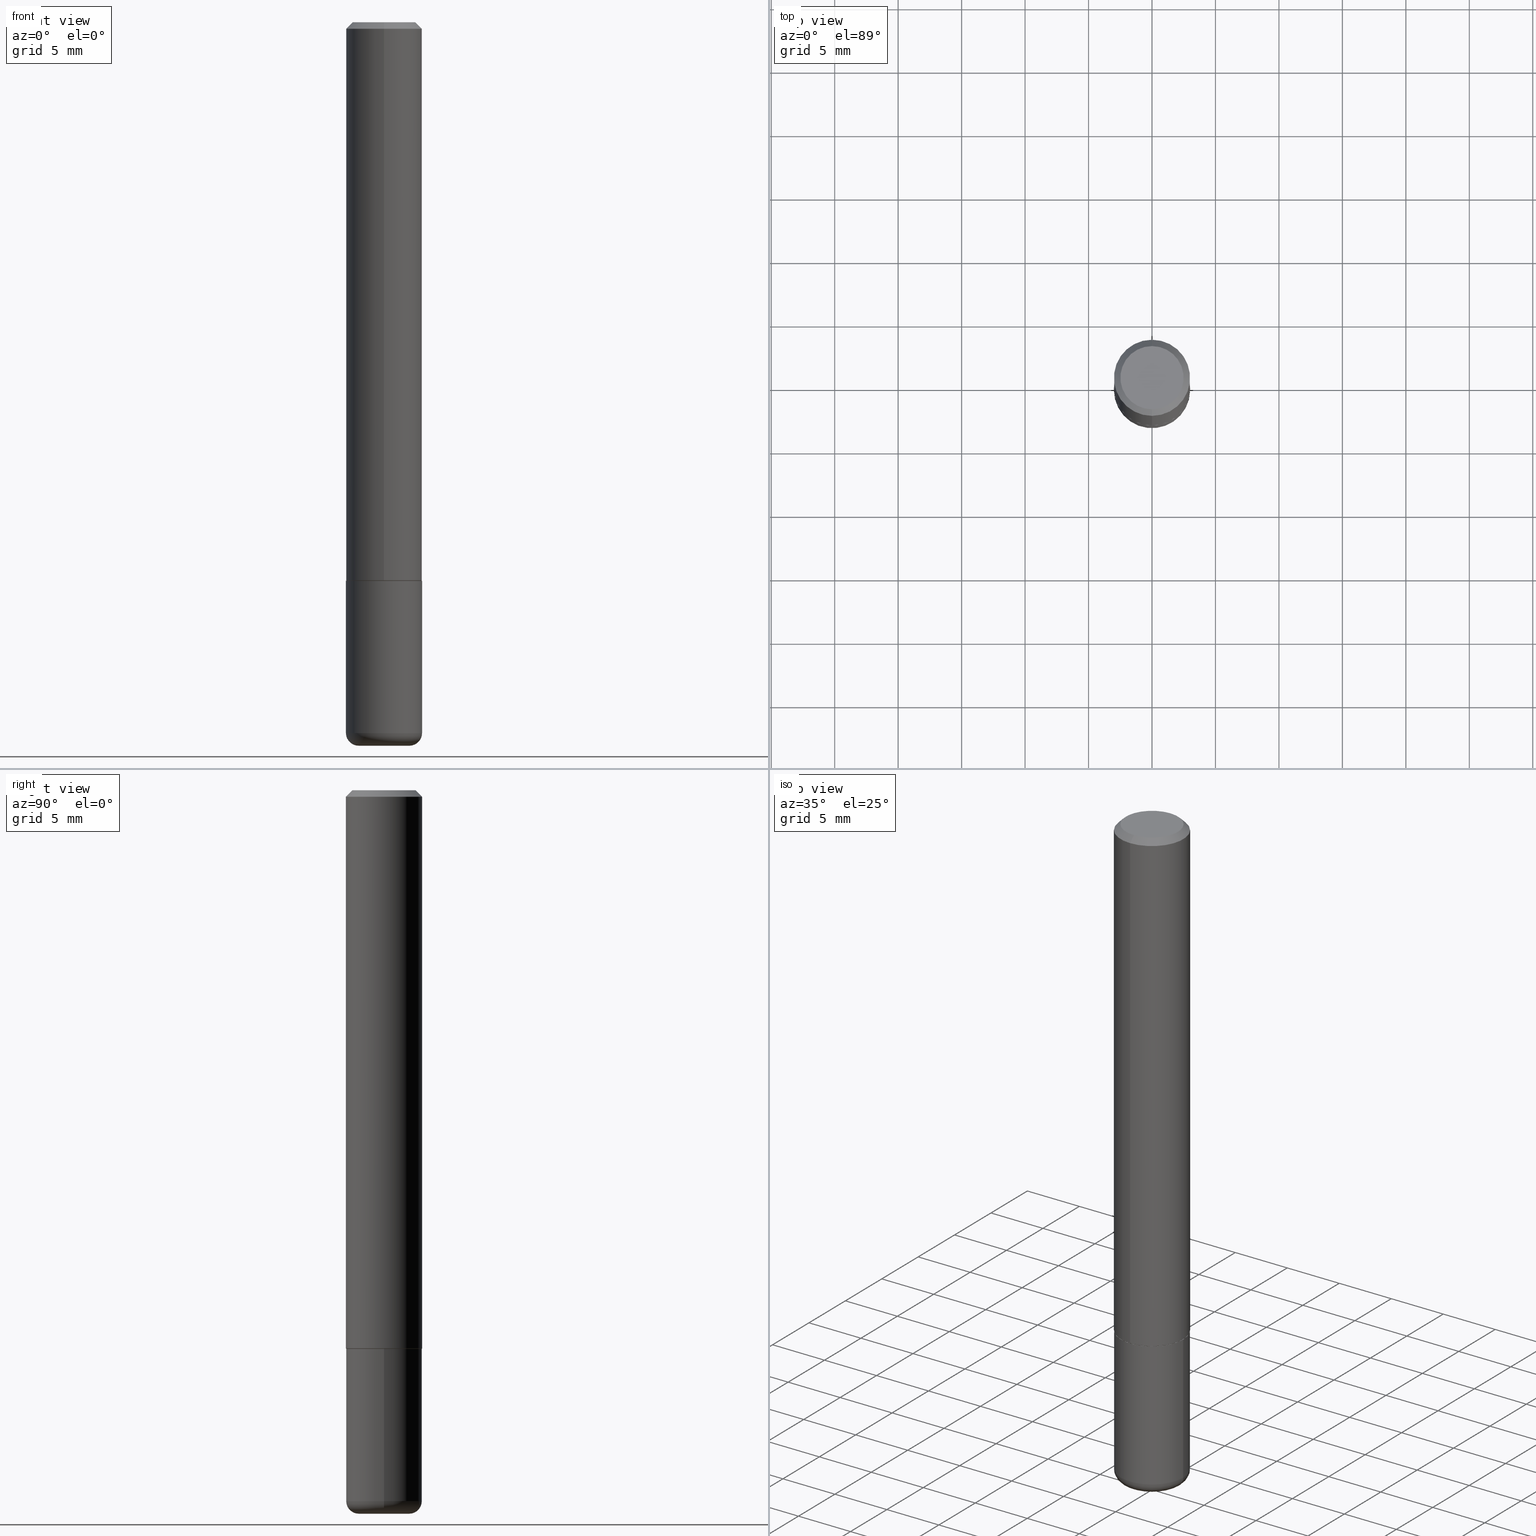
[diagram: canonical four-view strip — front | top / right | iso, engineering-drawing reading convention]
A machine part, canonical four-view strip (front | top / right | iso — engineering-drawing reading convention). The complete STEP part file that produces these views, byte-faithful:
ISO-10303-21;
HEADER;
FILE_DESCRIPTION (( 'STEP AP203' ),
    '1' );
FILE_NAME ('46451.STEP',
    '2024-03-04T20:52:11',
    ( '' ),
    ( '' ),
    'SwSTEP 2.0',
    'SolidWorks 2023',
    '' );
FILE_SCHEMA (( 'CONFIG_CONTROL_DESIGN' ));
ENDSEC;

DATA;
#1 = DESIGN_CONTEXT ( 'detailed design', #191, 'design' ) ;
#2 = CALENDAR_DATE ( 2024, 4, 3 ) ;
#3 = ORIENTED_EDGE ( 'NONE', *, *, #156, .F. ) ;
#4 = APPROVAL_PERSON_ORGANIZATION ( #389, #23, #362 ) ;
#5 = ADVANCED_FACE ( 'NONE', ( #238 ), #244, .F. ) ;
#6 = EDGE_LOOP ( 'NONE', ( #8, #101, #164, #104 ) ) ;
#7 = DIRECTION ( 'NONE',  ( -2.453207642472712595E-29, 3.480398884812129340E-15, 1.000000000000000000 ) ) ;
#8 = ORIENTED_EDGE ( 'NONE', *, *, #94, .F. ) ;
#9 = EDGE_LOOP ( 'NONE', ( #398, #208 ) ) ;
#10 = DIRECTION ( 'NONE',  ( -6.982962677686266711E-15, -1.000000000000000000, 2.332918867347790727E-15 ) ) ;
#11 = CC_DESIGN_PERSON_AND_ORGANIZATION_ASSIGNMENT ( #14, #366, ( #356 ) ) ;
#12 = CARTESIAN_POINT ( 'NONE',  ( 0.07870000000000000606, -8.384792435231810596E-15, -2.244099999999999540 ) ) ;
#13 = CYLINDRICAL_SURFACE ( 'NONE', #171, 0.1181000000000000105 ) ;
#14 = PERSON_AND_ORGANIZATION ( #77, #68 ) ;
#15 = CIRCLE ( 'NONE', #146, 0.03939999999999978936 ) ;
#16 = LINE ( 'NONE', #212, #318 ) ;
#17 = ADVANCED_FACE ( 'NONE', ( #155 ), #46, .T. ) ;
#18 = CARTESIAN_POINT ( 'NONE',  ( 4.906415284945444248E-31, -6.960797769624284960E-17, -0.02000000000000007674 ) ) ;
#19 = DIRECTION ( 'NONE',  ( -2.445468806185136597E-29, 3.491481338843145583E-15, 1.000000000000000000 ) ) ;
#20 = DIRECTION ( 'NONE',  ( 6.982962677686265922E-15, 1.000000000000000000, -3.469747663417776213E-15 ) ) ;
#21 = AXIS2_PLACEMENT_3D ( 'NONE', #227, #91, #125 ) ;
#22 = CARTESIAN_POINT ( 'NONE',  ( 0.1180999999999998995, -8.522356799982231388E-15, -2.204700000000000326 ) ) ;
#23 = APPROVAL ( #263, 'UNSPECIFIED' ) ;
#24 = DIRECTION ( 'NONE',  ( -1.000000000000000000, 6.982962677686265922E-15, -4.876176775795935793E-29 ) ) ;
#25 = EDGE_LOOP ( 'NONE', ( #173, #242 ) ) ;
#26 = ORIENTED_EDGE ( 'NONE', *, *, #378, .F. ) ;
#27 = DIRECTION ( 'NONE',  ( -2.453207642472712595E-29, 3.480398884812129340E-15, 1.000000000000000000 ) ) ;
#28 = DIRECTION ( 'NONE',  ( 2.453207642472712315E-29, -3.480398884812129340E-15, -1.000000000000000000 ) ) ;
#29 = EDGE_CURVE ( 'NONE', #130, #295, #354, .T. ) ;
#30 = DATE_AND_TIME ( #239, #109 ) ;
#31 = DIRECTION ( 'NONE',  ( 6.982962677686265922E-15, 1.000000000000000000, -3.480398884812129340E-15 ) ) ;
#32 = EDGE_LOOP ( 'NONE', ( #396, #298, #223, #357 ) ) ;
#33 = APPROVAL_DATE_TIME ( #103, #23 ) ;
#34 = VERTEX_POINT ( 'NONE', #216 ) ;
#35 = ORIENTED_EDGE ( 'NONE', *, *, #110, .F. ) ;
#36 = PERSON_AND_ORGANIZATION ( #77, #68 ) ;
#37 = APPLICATION_PROTOCOL_DEFINITION ( 'international standard', 'config_control_design', 1994, #243 ) ;
#38 = VERTEX_POINT ( 'NONE', #307 ) ;
#39 = DIRECTION ( 'NONE',  ( -2.453207642472712595E-29, 3.480398884812129340E-15, 1.000000000000000000 ) ) ;
#40 = ORIENTED_EDGE ( 'NONE', *, *, #127, .F. ) ;
#41 = CONICAL_SURFACE ( 'NONE', #264, 0.1181000000000000383, 0.7853981633974479459 ) ;
#42 = AXIS2_PLACEMENT_3D ( 'NONE', #408, #122, #278 ) ;
#43 = CARTESIAN_POINT ( 'NONE',  ( 5.391525076996371277E-29, -7.697668907747483125E-15, -2.204700000000000326 ) ) ;
#44 = DIRECTION ( 'NONE',  ( 1.000000000000000000, -6.982962677686266711E-15, 0.000000000000000000 ) ) ;
#45 = CYLINDRICAL_SURFACE ( 'NONE', #401, 0.1181000000000001354 ) ;
#46 = CYLINDRICAL_SURFACE ( 'NONE', #276, 0.1181000000000001354 ) ;
#47 = EDGE_CURVE ( 'NONE', #130, #106, #75, .T. ) ;
#48 = LINE ( 'NONE', #186, #240 ) ;
#49 = APPROVAL_STATUS ( 'not_yet_approved' ) ;
#50 = AXIS2_PLACEMENT_3D ( 'NONE', #147, #190, #373 ) ;
#51 = AXIS2_PLACEMENT_3D ( 'NONE', #280, #27, #165 ) ;
#52 = CC_DESIGN_APPROVAL ( #90, ( #356 ) ) ;
#53 = DIRECTION ( 'NONE',  ( -2.453207642472712595E-29, 3.480398884812129340E-15, 1.000000000000000000 ) ) ;
#54 = CARTESIAN_POINT ( 'NONE',  ( 0.1181000000000000105, -8.246878922347482626E-16, 5.758764772215001141E-30 ) ) ;
#55 = DIRECTION ( 'NONE',  ( -2.453207642472712315E-29, 3.480398884812129340E-15, 1.000000000000000000 ) ) ;
#56 = DIRECTION ( 'NONE',  ( -2.445468806185136597E-29, 3.491481338843145583E-15, 1.000000000000000000 ) ) ;
#57 = CC_DESIGN_DATE_AND_TIME_ASSIGNMENT ( #30, #332, ( #272 ) ) ;
#58 = VERTEX_POINT ( 'NONE', #273 ) ;
#59 = DIRECTION ( 'NONE',  ( -6.982962677686265133E-15, -1.000000000000000000, 3.480398884812129340E-15 ) ) ;
#60 = DIRECTION ( 'NONE',  ( 2.453207642472712595E-29, -3.480398884812129340E-15, -1.000000000000000000 ) ) ;
#61 = ADVANCED_FACE ( 'NONE', ( #399 ), #41, .T. ) ;
#62 = FACE_OUTER_BOUND ( 'NONE', #9, .T. ) ;
#63 = VERTEX_POINT ( 'NONE', #111 ) ;
#64 =( LENGTH_UNIT ( ) NAMED_UNIT ( * ) SI_UNIT ( $, .METRE. ) );
#65 = AXIS2_PLACEMENT_3D ( 'NONE', #346, #55, #217 ) ;
#66 = CIRCLE ( 'NONE', #87, 0.09810000000000024256 ) ;
#67 = EDGE_LOOP ( 'NONE', ( #301, #204, #202, #235 ) ) ;
#68 = ORGANIZATION ( 'UNSPECIFIED', 'UNSPECIFIED', '' ) ;
#69 = UNCERTAINTY_MEASURE_WITH_UNIT (LENGTH_MEASURE( 1.000000000000000082E-05 ), #234, 'distance_accuracy_value', 'NONE');
#70 = EDGE_LOOP ( 'NONE', ( #327, #195, #180, #392 ) ) ;
#71 = PERSON_AND_ORGANIZATION_ROLE ( 'design_owner' ) ;
#72 = EDGE_LOOP ( 'NONE', ( #291, #304, #266, #365 ) ) ;
#73 = EDGE_CURVE ( 'NONE', #169, #63, #89, .T. ) ;
#74 = ORIENTED_EDGE ( 'NONE', *, *, #302, .T. ) ;
#75 = CIRCLE ( 'NONE', #50, 0.07870000000000000606 ) ;
#76 = ORIENTED_EDGE ( 'NONE', *, *, #175, .F. ) ;
#77 = PERSON ( 'UNSPECIFIED', 'UNSPECIFIED', 'UNSPECIFIED', ('UNSPECIFIED'), ('UNSPECIFIED'), ('UNSPECIFIED') ) ;
#78 = EDGE_CURVE ( 'NONE', #79, #38, #246, .T. ) ;
#79 = VERTEX_POINT ( 'NONE', #118 ) ;
#80 = DIRECTION ( 'NONE',  ( -2.453207642472712595E-29, 3.480398884812129340E-15, 1.000000000000000000 ) ) ;
#81 = DIMENSIONAL_EXPONENTS ( 1.000000000000000000, 0.000000000000000000, 0.000000000000000000, 0.000000000000000000, 0.000000000000000000, 0.000000000000000000, 0.000000000000000000 ) ;
#82 = DIRECTION ( 'NONE',  ( -2.445468806185136877E-29, 3.491481338843145188E-15, 1.000000000000000000 ) ) ;
#83 = VECTOR ( 'NONE', #344, 39.37007874015748143 ) ;
#84 = CARTESIAN_POINT ( 'NONE',  ( -8.177049295570194526E-16, -0.1171000000000060326, -1.732299999999999729 ) ) ;
#85 = CARTESIAN_POINT ( 'NONE',  ( -8.246878922347070446E-16, -0.1181000000000062417, -1.731299999999999395 ) ) ;
#86 = CARTESIAN_POINT ( 'NONE',  ( 0.000000000000000000, 0.000000000000000000, 0.000000000000000000 ) ) ;
#87 = AXIS2_PLACEMENT_3D ( 'NONE', #383, #163, #59 ) ;
#88 = CYLINDRICAL_SURFACE ( 'NONE', #194, 0.1181000000000000105 ) ;
#89 = LINE ( 'NONE', #220, #231 ) ;
#90 = APPROVAL ( #132, 'UNSPECIFIED' ) ;
#91 = DIRECTION ( 'NONE',  ( -2.453207642472712595E-29, 3.480398884812129340E-15, 1.000000000000000000 ) ) ;
#92 = ORIENTED_EDGE ( 'NONE', *, *, #47, .T. ) ;
#93 = VECTOR ( 'NONE', #153, 39.37007874015748143 ) ;
#94 = EDGE_CURVE ( 'NONE', #367, #288, #16, .T. ) ;
#95 = CARTESIAN_POINT ( 'NONE',  ( -0.07870000000000000606, -7.138471774704284335E-15, -2.204700000000000326 ) ) ;
#96 =( NAMED_UNIT ( * ) SI_UNIT ( $, .STERADIAN. ) SOLID_ANGLE_UNIT ( ) );
#97 = CIRCLE ( 'NONE', #309, 0.1181000000000000383 ) ;
#98 = ORIENTED_EDGE ( 'NONE', *, *, #94, .T. ) ;
#99 = CC_DESIGN_APPROVAL ( #23, ( #272 ) ) ;
#100 = MECHANICAL_CONTEXT ( 'NONE', #243, 'mechanical' ) ;
#101 = ORIENTED_EDGE ( 'NONE', *, *, #258, .T. ) ;
#102 = EDGE_CURVE ( 'NONE', #138, #58, #136, .T. ) ;
#103 = DATE_AND_TIME ( #105, #414 ) ;
#104 = ORIENTED_EDGE ( 'NONE', *, *, #333, .F. ) ;
#105 = CALENDAR_DATE ( 2024, 4, 3 ) ;
#106 = VERTEX_POINT ( 'NONE', #376 ) ;
#107 = CLOSED_SHELL ( 'NONE', ( #260, #17, #61, #395, #245, #253, #5, #214 ) ) ;
#108 = CIRCLE ( 'NONE', #297, 0.1171000000000000096 ) ;
#109 = LOCAL_TIME ( 15, 52, 11.00000000000000000, #207 ) ;
#110 = EDGE_CURVE ( 'NONE', #63, #38, #249, .T. ) ;
#111 = CARTESIAN_POINT ( 'NONE',  ( -8.102248135368175393E-16, -0.1181000000000001077, -0.01999999999999966735 ) ) ;
#112 = CALENDAR_DATE ( 2024, 4, 3 ) ;
#113 = DIRECTION ( 'NONE',  ( 2.453207642472712595E-29, -3.480398884812129340E-15, -1.000000000000000000 ) ) ;
#114 = AXIS2_PLACEMENT_3D ( 'NONE', #285, #56, #348 ) ;
#115 = APPROVAL_PERSON_ORGANIZATION ( #117, #292, #247 ) ;
#116 = LINE ( 'NONE', #345, #250 ) ;
#117 = PERSON_AND_ORGANIZATION ( #77, #68 ) ;
#118 = CARTESIAN_POINT ( 'NONE',  ( 8.391509709327008768E-16, 0.1180999999999941957, -1.731300000000000505 ) ) ;
#119 = PRODUCT_RELATED_PRODUCT_CATEGORY ( 'detail', '', ( #294 ) ) ;
#120 = DIRECTION ( 'NONE',  ( 1.000000000000000000, -6.982962677686265133E-15, 0.000000000000000000 ) ) ;
#121 = PRODUCT_DEFINITION_SHAPE ( 'NONE', 'NONE',  #272 ) ;
#122 = DIRECTION ( 'NONE',  ( -2.445468806185136597E-29, 3.491481338843145583E-15, 1.000000000000000000 ) ) ;
#123 = AXIS2_PLACEMENT_3D ( 'NONE', #43, #148, #120 ) ;
#124 = FACE_OUTER_BOUND ( 'NONE', #70, .T. ) ;
#125 = DIRECTION ( 'NONE',  ( -6.982962677686265922E-15, -1.000000000000000000, 4.626330217890360659E-15 ) ) ;
#126 = VERTEX_POINT ( 'NONE', #305 ) ;
#127 = EDGE_CURVE ( 'NONE', #106, #130, #137, .T. ) ;
#128 = CARTESIAN_POINT ( 'NONE',  ( -0.1180999999999998995, -6.858517936814806506E-15, -2.204700000000000326 ) ) ;
#129 = TOROIDAL_SURFACE ( 'NONE', #355, 0.07870000000000000606, 0.03939999999999978936 ) ;
#130 = VERTEX_POINT ( 'NONE', #12 ) ;
#131 = FACE_OUTER_BOUND ( 'NONE', #320, .T. ) ;
#132 = APPROVAL_STATUS ( 'not_yet_approved' ) ;
#133 = ADVANCED_BREP_SHAPE_REPRESENTATION ( '46451', ( #237, #369, #270 ), #397 ) ;
#134 = DATE_AND_TIME ( #2, #310 ) ;
#135 = CC_DESIGN_DATE_AND_TIME_ASSIGNMENT ( #342, #274, ( #182 ) ) ;
#136 = CIRCLE ( 'NONE', #370, 0.09810000000000024256 ) ;
#137 = CIRCLE ( 'NONE', #42, 0.07870000000000000606 ) ;
#138 = VERTEX_POINT ( 'NONE', #275 ) ;
#139 = APPROVAL_DATE_TIME ( #134, #90 ) ;
#140 = ORIENTED_EDGE ( 'NONE', *, *, #102, .F. ) ;
#141 = COORDINATED_UNIVERSAL_TIME_OFFSET ( 5, 0, .BEHIND. ) ;
#142 = EDGE_LOOP ( 'NONE', ( #74, #162 ) ) ;
#143 = EDGE_CURVE ( 'NONE', #299, #169, #400, .T. ) ;
#144 = CARTESIAN_POINT ( 'NONE',  ( 0.000000000000000000, 0.000000000000000000, 0.000000000000000000 ) ) ;
#145 = EDGE_LOOP ( 'NONE', ( #140, #176, #271, #76 ) ) ;
#146 = AXIS2_PLACEMENT_3D ( 'NONE', #95, #160, #388 ) ;
#147 = CARTESIAN_POINT ( 'NONE',  ( 5.487876547960064752E-29, -7.835233272497900762E-15, -2.244099999999999540 ) ) ;
#148 = DIRECTION ( 'NONE',  ( -2.445468806185136597E-29, 3.491481338843145583E-15, 1.000000000000000000 ) ) ;
#149 = ADVANCED_FACE ( 'NONE', ( #343 ), #13, .T. ) ;
#150 = DIRECTION ( 'NONE',  ( -2.445468806185136597E-29, 3.491481338843145583E-15, 1.000000000000000000 ) ) ;
#151 = DATE_AND_TIME ( #229, #340 ) ;
#152 = AXIS2_PLACEMENT_3D ( 'NONE', #211, #338, #371 ) ;
#153 = DIRECTION ( 'NONE',  ( -4.937700262164884886E-15, -0.7071067811865933139, 0.7071067811865017205 ) ) ;
#154 = DIRECTION ( 'NONE',  ( -6.982962677686265922E-15, -1.000000000000000000, 3.480398884812129340E-15 ) ) ;
#155 = FACE_OUTER_BOUND ( 'NONE', #391, .T. ) ;
#156 = EDGE_CURVE ( 'NONE', #34, #79, #116, .T. ) ;
#157 = CARTESIAN_POINT ( 'NONE',  ( 0.000000000000000000, 0.000000000000000000, 0.000000000000000000 ) ) ;
#158 = PLANE ( 'NONE',  #330 ) ;
#159 = AXIS2_PLACEMENT_3D ( 'NONE', #192, #286, #226 ) ;
#160 = DIRECTION ( 'NONE',  ( 7.105427357601001859E-15, 1.000000000000000000, -3.491481338843145583E-15 ) ) ;
#161 = DIRECTION ( 'NONE',  ( -2.445468806185136597E-29, 3.491481338843145583E-15, 1.000000000000000000 ) ) ;
#162 = ORIENTED_EDGE ( 'NONE', *, *, #333, .T. ) ;
#163 = DIRECTION ( 'NONE',  ( -2.453207642472712595E-29, 3.480398884812129340E-15, 1.000000000000000000 ) ) ;
#164 = ORIENTED_EDGE ( 'NONE', *, *, #406, .T. ) ;
#165 = DIRECTION ( 'NONE',  ( -6.982962677686265922E-15, -1.000000000000000000, 3.469747663417776213E-15 ) ) ;
#166 = DIRECTION ( 'NONE',  ( 0.000000000000000000, 0.000000000000000000, 1.000000000000000000 ) ) ;
#167 = CC_DESIGN_PERSON_AND_ORGANIZATION_ASSIGNMENT ( #36, #360, ( #272 ) ) ;
#168 = DIRECTION ( 'NONE',  ( 1.000000000000000000, -6.982962677686268288E-15, 4.883557194083112901E-29 ) ) ;
#169 = VERTEX_POINT ( 'NONE', #85 ) ;
#170 =( NAMED_UNIT ( * ) PLANE_ANGLE_UNIT ( ) SI_UNIT ( $, .RADIAN. ) );
#171 = AXIS2_PLACEMENT_3D ( 'NONE', #86, #150, #405 ) ;
#172 = AXIS2_PLACEMENT_3D ( 'NONE', #415, #413, #411 ) ;
#173 = ORIENTED_EDGE ( 'NONE', *, *, #416, .F. ) ;
#174 = LENGTH_MEASURE_WITH_UNIT ( LENGTH_MEASURE( 0.02539999999999999897 ), #64 );
#175 = EDGE_CURVE ( 'NONE', #58, #38, #48, .T. ) ;
#176 = ORIENTED_EDGE ( 'NONE', *, *, #224, .T. ) ;
#177 = CARTESIAN_POINT ( 'NONE',  ( 4.249691599055480150E-29, -6.029094988160052351E-15, -1.732299999999999951 ) ) ;
#178 = ORIENTED_EDGE ( 'NONE', *, *, #358, .T. ) ;
#179 = PERSON_AND_ORGANIZATION ( #77, #68 ) ;
#180 = ORIENTED_EDGE ( 'NONE', *, *, #29, .T. ) ;
#181 = VECTOR ( 'NONE', #313, 39.37007874015748143 ) ;
#182 = SECURITY_CLASSIFICATION ( '', '', #335 ) ;
#183 = FACE_OUTER_BOUND ( 'NONE', #67, .T. ) ;
#184 = CARTESIAN_POINT ( 'NONE',  ( 4.906415284945444248E-31, -6.960797769624284960E-17, -0.02000000000000007674 ) ) ;
#185 = CARTESIAN_POINT ( 'NONE',  ( 0.000000000000000000, 0.000000000000000000, 0.000000000000000000 ) ) ;
#186 = CARTESIAN_POINT ( 'NONE',  ( 8.246878922347486570E-16, 0.1180999999999999689, -0.02000000000000048614 ) ) ;
#187 = DIRECTION ( 'NONE',  ( -2.453207642472712595E-29, 3.480398884812129340E-15, 1.000000000000000000 ) ) ;
#188 = EDGE_CURVE ( 'NONE', #169, #79, #339, .T. ) ;
#189 = CARTESIAN_POINT ( 'NONE',  ( 4.236285612954512392E-29, -6.048293123277981078E-15, -1.732299999999999951 ) ) ;
#190 = DIRECTION ( 'NONE',  ( -2.445468806185136597E-29, 3.491481338843145583E-15, 1.000000000000000000 ) ) ;
#191 = APPLICATION_CONTEXT ( 'configuration controlled 3d designs of mechanical parts and assemblies' ) ;
#192 = CARTESIAN_POINT ( 'NONE',  ( 4.249691599055480150E-29, -6.029094988160052351E-15, -1.732299999999999951 ) ) ;
#193 = SHAPE_DEFINITION_REPRESENTATION ( #121, #133 ) ;
#194 = AXIS2_PLACEMENT_3D ( 'NONE', #157, #161, #222 ) ;
#195 = ORIENTED_EDGE ( 'NONE', *, *, #127, .T. ) ;
#196 = ADVANCED_FACE ( 'NONE', ( #384 ), #158, .T. ) ;
#197 = DIRECTION ( 'NONE',  ( -2.445468806185136597E-29, 3.491481338843145583E-15, 1.000000000000000000 ) ) ;
#198 = CIRCLE ( 'NONE', #289, 0.1180999999999999966 ) ;
#199 = LOCAL_TIME ( 15, 52, 11.00000000000000000, #215 ) ;
#200 = EDGE_CURVE ( 'NONE', #295, #367, #198, .T. ) ;
#201 = DIRECTION ( 'NONE',  ( -2.445468806185136597E-29, 3.491481338843145583E-15, 1.000000000000000000 ) ) ;
#202 = ORIENTED_EDGE ( 'NONE', *, *, #73, .T. ) ;
#203 = APPROVAL_ROLE ( '' ) ;
#204 = ORIENTED_EDGE ( 'NONE', *, *, #378, .T. ) ;
#205 = CONICAL_SURFACE ( 'NONE', #325, 0.1171000000000000096, 0.7853981633975165577 ) ;
#206 = ORIENTED_EDGE ( 'NONE', *, *, #47, .F. ) ;
#207 = COORDINATED_UNIVERSAL_TIME_OFFSET ( 5, 0, .BEHIND. ) ;
#208 = ORIENTED_EDGE ( 'NONE', *, *, #102, .T. ) ;
#209 = CARTESIAN_POINT ( 'NONE',  ( 4.249691599055480150E-29, -6.029094988160052351E-15, -1.732299999999999951 ) ) ;
#210 = EDGE_LOOP ( 'NONE', ( #206, #40 ) ) ;
#211 = CARTESIAN_POINT ( 'NONE',  ( 4.249691599055480150E-29, -6.029094988160052351E-15, -1.732299999999999951 ) ) ;
#212 = CARTESIAN_POINT ( 'NONE',  ( -0.1181000000000000105, 8.391509709326783943E-16, -5.809262341591044484E-30 ) ) ;
#213 = CIRCLE ( 'NONE', #51, 0.1181000000000000383 ) ;
#214 = ADVANCED_FACE ( 'NONE', ( #62 ), #324, .F. ) ;
#215 = COORDINATED_UNIVERSAL_TIME_OFFSET ( 5, 0, .BEHIND. ) ;
#216 = CARTESIAN_POINT ( 'NONE',  ( 8.355982572539209817E-16, 0.1170999999999939867, -1.732300000000000173 ) ) ;
#217 = DIRECTION ( 'NONE',  ( -6.982962677686265922E-15, -1.000000000000000000, 3.480398884812129340E-15 ) ) ;
#218 = CARTESIAN_POINT ( 'NONE',  ( 4.247238391413007302E-29, -6.025614589275239241E-15, -1.731299999999999839 ) ) ;
#219 = LINE ( 'NONE', #54, #181 ) ;
#220 = CARTESIAN_POINT ( 'NONE',  ( -8.246878922347489529E-16, -0.1181000000000001354, 4.110351082963129416E-16 ) ) ;
#221 = CARTESIAN_POINT ( 'NONE',  ( -8.177049295570194526E-16, -0.1171000000000060326, -1.732299999999999729 ) ) ;
#222 = DIRECTION ( 'NONE',  ( 1.000000000000000000, -6.982962677686267499E-15, 4.876176775795936353E-29 ) ) ;
#223 = ORIENTED_EDGE ( 'NONE', *, *, #175, .T. ) ;
#224 = EDGE_CURVE ( 'NONE', #138, #63, #418, .T. ) ;
#225 = CIRCLE ( 'NONE', #21, 0.1181000000000002187 ) ;
#226 = DIRECTION ( 'NONE',  ( -6.982962677686266711E-15, -1.000000000000000000, 2.332918867347790727E-15 ) ) ;
#227 = CARTESIAN_POINT ( 'NONE',  ( 4.247238391413007302E-29, -6.025614589275239241E-15, -1.731299999999999839 ) ) ;
#228 = COORDINATED_UNIVERSAL_TIME_OFFSET ( 5, 0, .BEHIND. ) ;
#229 = CALENDAR_DATE ( 2024, 4, 3 ) ;
#231 = VECTOR ( 'NONE', #255, 39.37007874015748143 ) ;
#230 = COORDINATED_UNIVERSAL_TIME_OFFSET ( 5, 0, .BEHIND. ) ;
#232 = AXIS2_PLACEMENT_3D ( 'NONE', #218, #187, #312 ) ;
#233 = ORIENTED_EDGE ( 'NONE', *, *, #200, .T. ) ;
#234 =( CONVERSION_BASED_UNIT ( 'INCH', #174 ) LENGTH_UNIT ( ) NAMED_UNIT ( #81 ) );
#235 = ORIENTED_EDGE ( 'NONE', *, *, #390, .F. ) ;
#236 = DIRECTION ( 'NONE',  ( -6.982962677686266711E-15, -1.000000000000000000, 2.332918867347790727E-15 ) ) ;
#237 = MANIFOLD_SOLID_BREP ( 'Body-Move/Copy2[1]', #256 ) ;
#238 = FACE_OUTER_BOUND ( 'NONE', #25, .T. ) ;
#239 = CALENDAR_DATE ( 2024, 4, 3 ) ;
#240 = VECTOR ( 'NONE', #308, 39.37007874015748143 ) ;
#241 = APPROVAL_PERSON_ORGANIZATION ( #417, #90, #203 ) ;
#242 = ORIENTED_EDGE ( 'NONE', *, *, #358, .F. ) ;
#243 = APPLICATION_CONTEXT ( 'configuration controlled 3d designs of mechanical parts and assemblies' ) ;
#244 = PLANE ( 'NONE',  #65 ) ;
#245 = ADVANCED_FACE ( 'NONE', ( #183 ), #45, .T. ) ;
#246 = LINE ( 'NONE', #368, #83 ) ;
#247 = APPROVAL_ROLE ( '' ) ;
#248 = CARTESIAN_POINT ( 'NONE',  ( 6.728461373399560845E-45, -9.545759215423528574E-31, -2.742719881068690721E-16 ) ) ;
#249 = CIRCLE ( 'NONE', #380, 0.1181000000000000383 ) ;
#250 = VECTOR ( 'NONE', #252, 39.37007874015748143 ) ;
#251 = CC_DESIGN_SECURITY_CLASSIFICATION ( #182, ( #356 ) ) ;
#252 = DIRECTION ( 'NONE',  ( 5.024295867788404755E-15, 0.7071067811865981989, 0.7071067811864968355 ) ) ;
#253 = ADVANCED_FACE ( 'NONE', ( #306 ), #282, .T. ) ;
#254 = DIRECTION ( 'NONE',  ( -2.453207642472712595E-29, 3.480398884812129340E-15, 1.000000000000000000 ) ) ;
#255 = DIRECTION ( 'NONE',  ( -2.453207642472712315E-29, 3.480398884812129340E-15, 1.000000000000000000 ) ) ;
#256 = CLOSED_SHELL ( 'NONE', ( #322, #387, #364, #149, #412, #196 ) ) ;
#257 = VECTOR ( 'NONE', #407, 39.37007874015748143 ) ;
#258 = EDGE_CURVE ( 'NONE', #367, #295, #385, .T. ) ;
#259 = DIRECTION ( 'NONE',  ( -2.445468806185136597E-29, 3.491481338843145583E-15, 1.000000000000000000 ) ) ;
#260 = ADVANCED_FACE ( 'NONE', ( #377 ), #205, .T. ) ;
#261 = FACE_OUTER_BOUND ( 'NONE', #32, .T. ) ;
#262 = ORIENTED_EDGE ( 'NONE', *, *, #143, .T. ) ;
#264 = AXIS2_PLACEMENT_3D ( 'NONE', #18, #113, #379 ) ;
#263 = APPROVAL_STATUS ( 'not_yet_approved' ) ;
#265 = CONICAL_SURFACE ( 'NONE', #372, 0.1181000000000000383, 0.7853981633974479459 ) ;
#266 = ORIENTED_EDGE ( 'NONE', *, *, #188, .F. ) ;
#267 = PERSON_AND_ORGANIZATION ( #77, #68 ) ;
#268 = ORIENTED_EDGE ( 'NONE', *, *, #406, .F. ) ;
#269 = ORIENTED_EDGE ( 'NONE', *, *, #302, .F. ) ;
#270 = AXIS2_PLACEMENT_3D ( 'NONE', #144, #166, #300 ) ;
#271 = ORIENTED_EDGE ( 'NONE', *, *, #110, .T. ) ;
#272 = PRODUCT_DEFINITION ( 'UNKNOWN', '', #356, #1 ) ;
#273 = CARTESIAN_POINT ( 'NONE',  ( 7.548582654578864435E-16, 0.09810000000000024256, -6.156991187069398174E-16 ) ) ;
#274 = DATE_TIME_ROLE ( 'classification_date' ) ;
#275 = CARTESIAN_POINT ( 'NONE',  ( -7.416198335591031939E-16, -0.09810000000000024256, 6.715514249320171023E-17 ) ) ;
#276 = AXIS2_PLACEMENT_3D ( 'NONE', #185, #375, #403 ) ;
#277 = DIRECTION ( 'NONE',  ( -6.982962677686265133E-15, -1.000000000000000000, 3.480398884812129340E-15 ) ) ;
#278 = DIRECTION ( 'NONE',  ( 1.000000000000000000, -6.982962677686269077E-15, 0.000000000000000000 ) ) ;
#279 = DIRECTION ( 'NONE',  ( -6.982962677686265922E-15, -1.000000000000000000, 3.469747663417776213E-15 ) ) ;
#280 = CARTESIAN_POINT ( 'NONE',  ( 4.906415284945444248E-31, -6.960797769624284960E-17, -0.02000000000000007674 ) ) ;
#281 = DIRECTION ( 'NONE',  ( 2.438088387897960049E-29, -3.491481338843145188E-15, -1.000000000000000000 ) ) ;
#282 = CONICAL_SURFACE ( 'NONE', #152, 0.1171000000000000096, 0.7853981633975165577 ) ;
#283 = CC_DESIGN_PERSON_AND_ORGANIZATION_ASSIGNMENT ( #179, #303, ( #182 ) ) ;
#284 = CARTESIAN_POINT ( 'NONE',  ( 6.850286386810243286E-16, 0.09810000000000024256, -4.785631246535053306E-16 ) ) ;
#285 = CARTESIAN_POINT ( 'NONE',  ( 4.236285612954512392E-29, -6.048293123277981078E-15, -1.732299999999999951 ) ) ;
#286 = DIRECTION ( 'NONE',  ( -2.453207642472712595E-29, 3.480398884812129340E-15, 1.000000000000000000 ) ) ;
#287 = CARTESIAN_POINT ( 'NONE',  ( 1.092743596228401244E-28, -4.547459069109707912E-17, -2.244099999999999540 ) ) ;
#288 = VERTEX_POINT ( 'NONE', #381 ) ;
#289 = AXIS2_PLACEMENT_3D ( 'NONE', #317, #259, #353 ) ;
#290 = FACE_OUTER_BOUND ( 'NONE', #142, .T. ) ;
#291 = ORIENTED_EDGE ( 'NONE', *, *, #416, .T. ) ;
#292 = APPROVAL ( #49, 'UNSPECIFIED' ) ;
#293 = PERSON_AND_ORGANIZATION ( #77, #68 ) ;
#294 = PRODUCT ( '46451', '46451', '', ( #100 ) ) ;
#295 = VERTEX_POINT ( 'NONE', #22 ) ;
#296 = CARTESIAN_POINT ( 'NONE',  ( 5.391525076996371277E-29, -7.697668907747483125E-15, -2.204700000000000326 ) ) ;
#297 = AXIS2_PLACEMENT_3D ( 'NONE', #177, #7, #236 ) ;
#298 = ORIENTED_EDGE ( 'NONE', *, *, #347, .F. ) ;
#299 = VERTEX_POINT ( 'NONE', #221 ) ;
#300 = DIRECTION ( 'NONE',  ( 1.000000000000000000, 0.000000000000000000, 0.000000000000000000 ) ) ;
#301 = ORIENTED_EDGE ( 'NONE', *, *, #78, .F. ) ;
#302 = EDGE_CURVE ( 'NONE', #126, #288, #97, .T. ) ;
#303 = PERSON_AND_ORGANIZATION_ROLE ( 'classification_officer' ) ;
#304 = ORIENTED_EDGE ( 'NONE', *, *, #156, .T. ) ;
#305 = CARTESIAN_POINT ( 'NONE',  ( 0.1181000000000000383, -6.872981015512729341E-15, -1.732299999999999951 ) ) ;
#306 = FACE_OUTER_BOUND ( 'NONE', #334, .T. ) ;
#307 = CARTESIAN_POINT ( 'NONE',  ( 8.246878922347486570E-16, 0.1180999999999999689, -0.02000000000000048614 ) ) ;
#308 = DIRECTION ( 'NONE',  ( 4.937700262164545676E-15, 0.7071067811865447972, -0.7071067811865502373 ) ) ;
#309 = AXIS2_PLACEMENT_3D ( 'NONE', #189, #19, #382 ) ;
#310 = LOCAL_TIME ( 15, 52, 11.00000000000000000, #230 ) ;
#311 = CARTESIAN_POINT ( 'NONE',  ( 0.000000000000000000, 0.000000000000000000, 0.000000000000000000 ) ) ;
#312 = DIRECTION ( 'NONE',  ( -6.982962677686265922E-15, -1.000000000000000000, 4.626330217890360659E-15 ) ) ;
#313 = DIRECTION ( 'NONE',  ( -2.445468806185136877E-29, 3.491481338843145188E-15, 1.000000000000000000 ) ) ;
#314 = DIRECTION ( 'NONE',  ( -6.982962677686266711E-15, -1.000000000000000000, 3.491481338843145583E-15 ) ) ;
#315 = CC_DESIGN_PERSON_AND_ORGANIZATION_ASSIGNMENT ( #293, #71, ( #294 ) ) ;
#316 = DIRECTION ( 'NONE',  ( 1.000000000000000000, -6.982962677686268288E-15, 4.883557194083112901E-29 ) ) ;
#317 = CARTESIAN_POINT ( 'NONE',  ( 5.391525076996371277E-29, -7.697668907747483125E-15, -2.204700000000000326 ) ) ;
#318 = VECTOR ( 'NONE', #82, 39.37007874015748143 ) ;
#319 = TOROIDAL_SURFACE ( 'NONE', #363, 0.07870000000000000606, 0.03939999999999978936 ) ;
#320 = EDGE_LOOP ( 'NONE', ( #92, #359, #331, #329 ) ) ;
#321 = FACE_OUTER_BOUND ( 'NONE', #350, .T. ) ;
#322 = ADVANCED_FACE ( 'NONE', ( #321 ), #88, .T. ) ;
#323 = PLANE ( 'NONE',  #172 ) ;
#324 = PLANE ( 'NONE',  #410 ) ;
#325 = AXIS2_PLACEMENT_3D ( 'NONE', #209, #39, #10 ) ;
#326 = APPLICATION_PROTOCOL_DEFINITION ( 'international standard', 'config_control_design', 1994, #191 ) ;
#327 = ORIENTED_EDGE ( 'NONE', *, *, #328, .F. ) ;
#328 = EDGE_CURVE ( 'NONE', #106, #367, #15, .T. ) ;
#329 = ORIENTED_EDGE ( 'NONE', *, *, #29, .F. ) ;
#330 = AXIS2_PLACEMENT_3D ( 'NONE', #287, #281, #24 ) ;
#331 = ORIENTED_EDGE ( 'NONE', *, *, #200, .F. ) ;
#332 = DATE_TIME_ROLE ( 'creation_date' ) ;
#333 = EDGE_CURVE ( 'NONE', #288, #126, #351, .T. ) ;
#334 = EDGE_LOOP ( 'NONE', ( #3, #178, #262, #26 ) ) ;
#335 = SECURITY_CLASSIFICATION_LEVEL ( 'unclassified' ) ;
#336 = CARTESIAN_POINT ( 'NONE',  ( -8.102248135368175393E-16, -0.1181000000000001077, -0.01999999999999966735 ) ) ;
#337 = ORIENTED_EDGE ( 'NONE', *, *, #78, .T. ) ;
#338 = DIRECTION ( 'NONE',  ( -2.453207642472712595E-29, 3.480398884812129340E-15, 1.000000000000000000 ) ) ;
#339 = CIRCLE ( 'NONE', #232, 0.1181000000000002187 ) ;
#340 = LOCAL_TIME ( 15, 52, 11.00000000000000000, #228 ) ;
#341 = CARTESIAN_POINT ( 'NONE',  ( 0.07870000000000000606, -8.247228070481392959E-15, -2.204700000000000326 ) ) ;
#342 = DATE_AND_TIME ( #112, #199 ) ;
#343 = FACE_OUTER_BOUND ( 'NONE', #6, .T. ) ;
#344 = DIRECTION ( 'NONE',  ( -2.453207642472712315E-29, 3.480398884812129340E-15, 1.000000000000000000 ) ) ;
#345 = CARTESIAN_POINT ( 'NONE',  ( 8.320455435751197874E-16, 0.1170999999999939867, -1.732300000000000173 ) ) ;
#346 = CARTESIAN_POINT ( 'NONE',  ( 4.249691599055480150E-29, -6.029094988160052351E-15, -1.732299999999999951 ) ) ;
#347 = EDGE_CURVE ( 'NONE', #58, #138, #66, .T. ) ;
#348 = DIRECTION ( 'NONE',  ( 1.000000000000000000, -6.982962677686262766E-15, 0.000000000000000000 ) ) ;
#349 = AXIS2_PLACEMENT_3D ( 'NONE', #341, #314, #44 ) ;
#350 = EDGE_LOOP ( 'NONE', ( #233, #98, #269, #268 ) ) ;
#351 = CIRCLE ( 'NONE', #114, 0.1181000000000000383 ) ;
#352 = CARTESIAN_POINT ( 'NONE',  ( 4.906415284945444248E-31, -6.960797769624284960E-17, -0.02000000000000007674 ) ) ;
#353 = DIRECTION ( 'NONE',  ( 1.000000000000000000, -6.982962677686265133E-15, 0.000000000000000000 ) ) ;
#354 = CIRCLE ( 'NONE', #349, 0.03939999999999978936 ) ;
#355 = AXIS2_PLACEMENT_3D ( 'NONE', #409, #197, #316 ) ;
#356 = PRODUCT_DEFINITION_FORMATION_WITH_SPECIFIED_SOURCE ( 'ANY', '', #294, .NOT_KNOWN. ) ;
#357 = ORIENTED_EDGE ( 'NONE', *, *, #390, .T. ) ;
#358 = EDGE_CURVE ( 'NONE', #34, #299, #402, .T. ) ;
#359 = ORIENTED_EDGE ( 'NONE', *, *, #328, .T. ) ;
#360 = PERSON_AND_ORGANIZATION_ROLE ( 'creator' ) ;
#361 = ORIENTED_EDGE ( 'NONE', *, *, #188, .T. ) ;
#363 = AXIS2_PLACEMENT_3D ( 'NONE', #296, #201, #168 ) ;
#362 = APPROVAL_ROLE ( '' ) ;
#364 = ADVANCED_FACE ( 'NONE', ( #290 ), #323, .F. ) ;
#365 = ORIENTED_EDGE ( 'NONE', *, *, #143, .F. ) ;
#366 = PERSON_AND_ORGANIZATION_ROLE ( 'design_supplier' ) ;
#367 = VERTEX_POINT ( 'NONE', #128 ) ;
#368 = CARTESIAN_POINT ( 'NONE',  ( 8.391509709326791832E-16, 0.1181000000000001354, -4.110351082963129416E-16 ) ) ;
#369 = MANIFOLD_SOLID_BREP ( 'Body-Move/Copy2[2]', #107 ) ;
#370 = AXIS2_PLACEMENT_3D ( 'NONE', #248, #254, #277 ) ;
#371 = DIRECTION ( 'NONE',  ( -6.982962677686266711E-15, -1.000000000000000000, 2.332918867347790727E-15 ) ) ;
#372 = AXIS2_PLACEMENT_3D ( 'NONE', #352, #60, #20 ) ;
#373 = DIRECTION ( 'NONE',  ( 1.000000000000000000, -6.982962677686269077E-15, 0.000000000000000000 ) ) ;
#374 = CC_DESIGN_PERSON_AND_ORGANIZATION_ASSIGNMENT ( #267, #393, ( #356 ) ) ;
#375 = DIRECTION ( 'NONE',  ( -2.453207642472712595E-29, 3.480398884812129340E-15, 1.000000000000000000 ) ) ;
#376 = CARTESIAN_POINT ( 'NONE',  ( -0.07870000000000000606, -7.067277038134755422E-15, -2.244099999999999540 ) ) ;
#377 = FACE_OUTER_BOUND ( 'NONE', #72, .T. ) ;
#378 = EDGE_CURVE ( 'NONE', #79, #169, #225, .T. ) ;
#379 = DIRECTION ( 'NONE',  ( 6.982962677686265922E-15, 1.000000000000000000, -3.469747663417776213E-15 ) ) ;
#380 = AXIS2_PLACEMENT_3D ( 'NONE', #184, #53, #279 ) ;
#381 = CARTESIAN_POINT ( 'NONE',  ( -0.1181000000000000522, -6.033830044580054299E-15, -1.732299999999999951 ) ) ;
#382 = DIRECTION ( 'NONE',  ( 1.000000000000000000, -6.982962677686262766E-15, 0.000000000000000000 ) ) ;
#383 = CARTESIAN_POINT ( 'NONE',  ( 6.728461373399560845E-45, -9.545759215423528574E-31, -2.742719881068690721E-16 ) ) ;
#384 = FACE_OUTER_BOUND ( 'NONE', #210, .T. ) ;
#385 = CIRCLE ( 'NONE', #123, 0.1180999999999999966 ) ;
#386 = CC_DESIGN_APPROVAL ( #292, ( #182 ) ) ;
#387 = ADVANCED_FACE ( 'NONE', ( #131 ), #129, .T. ) ;
#388 = DIRECTION ( 'NONE',  ( -1.000000000000000000, 7.105427357600989237E-15, 0.000000000000000000 ) ) ;
#389 = PERSON_AND_ORGANIZATION ( #77, #68 ) ;
#390 = EDGE_CURVE ( 'NONE', #38, #63, #213, .T. ) ;
#391 = EDGE_LOOP ( 'NONE', ( #361, #337, #35, #394 ) ) ;
#392 = ORIENTED_EDGE ( 'NONE', *, *, #258, .F. ) ;
#393 = PERSON_AND_ORGANIZATION_ROLE ( 'creator' ) ;
#394 = ORIENTED_EDGE ( 'NONE', *, *, #73, .F. ) ;
#395 = ADVANCED_FACE ( 'NONE', ( #261 ), #265, .T. ) ;
#396 = ORIENTED_EDGE ( 'NONE', *, *, #224, .F. ) ;
#397 =( GEOMETRIC_REPRESENTATION_CONTEXT ( 3 ) GLOBAL_UNCERTAINTY_ASSIGNED_CONTEXT ( ( #69 ) ) GLOBAL_UNIT_ASSIGNED_CONTEXT ( ( #234, #170, #96 ) ) REPRESENTATION_CONTEXT ( 'NONE', 'WORKASPACE' ) );
#398 = ORIENTED_EDGE ( 'NONE', *, *, #347, .T. ) ;
#399 = FACE_OUTER_BOUND ( 'NONE', #145, .T. ) ;
#400 = LINE ( 'NONE', #84, #93 ) ;
#401 = AXIS2_PLACEMENT_3D ( 'NONE', #311, #80, #154 ) ;
#402 = CIRCLE ( 'NONE', #159, 0.1171000000000000096 ) ;
#403 = DIRECTION ( 'NONE',  ( -6.982962677686265922E-15, -1.000000000000000000, 3.480398884812129340E-15 ) ) ;
#404 = APPROVAL_DATE_TIME ( #151, #292 ) ;
#405 = DIRECTION ( 'NONE',  ( 1.000000000000000000, -6.982962677686267499E-15, 4.876176775795936353E-29 ) ) ;
#406 = EDGE_CURVE ( 'NONE', #295, #126, #219, .T. ) ;
#407 = DIRECTION ( 'NONE',  ( -4.851104656540961908E-15, -0.7071067811865496822, -0.7071067811865453523 ) ) ;
#408 = CARTESIAN_POINT ( 'NONE',  ( 5.487876547960064752E-29, -7.835233272497900762E-15, -2.244099999999999540 ) ) ;
#409 = CARTESIAN_POINT ( 'NONE',  ( 5.391525076996371277E-29, -7.697668907747483125E-15, -2.204700000000000326 ) ) ;
#410 = AXIS2_PLACEMENT_3D ( 'NONE', #284, #28, #31 ) ;
#411 = DIRECTION ( 'NONE',  ( -1.000000000000000000, 6.982962677686265922E-15, -4.876176775795935793E-29 ) ) ;
#412 = ADVANCED_FACE ( 'NONE', ( #124 ), #319, .T. ) ;
#413 = DIRECTION ( 'NONE',  ( 2.438088387897960049E-29, -3.491481338843145188E-15, -1.000000000000000000 ) ) ;
#414 = LOCAL_TIME ( 15, 52, 11.00000000000000000, #141 ) ;
#415 = CARTESIAN_POINT ( 'NONE',  ( 4.236285612954512392E-29, -6.048293123277981078E-15, -1.732299999999999951 ) ) ;
#416 = EDGE_CURVE ( 'NONE', #299, #34, #108, .T. ) ;
#417 = PERSON_AND_ORGANIZATION ( #77, #68 ) ;
#418 = LINE ( 'NONE', #336, #257 ) ;
ENDSEC;
END-ISO-10303-21;
